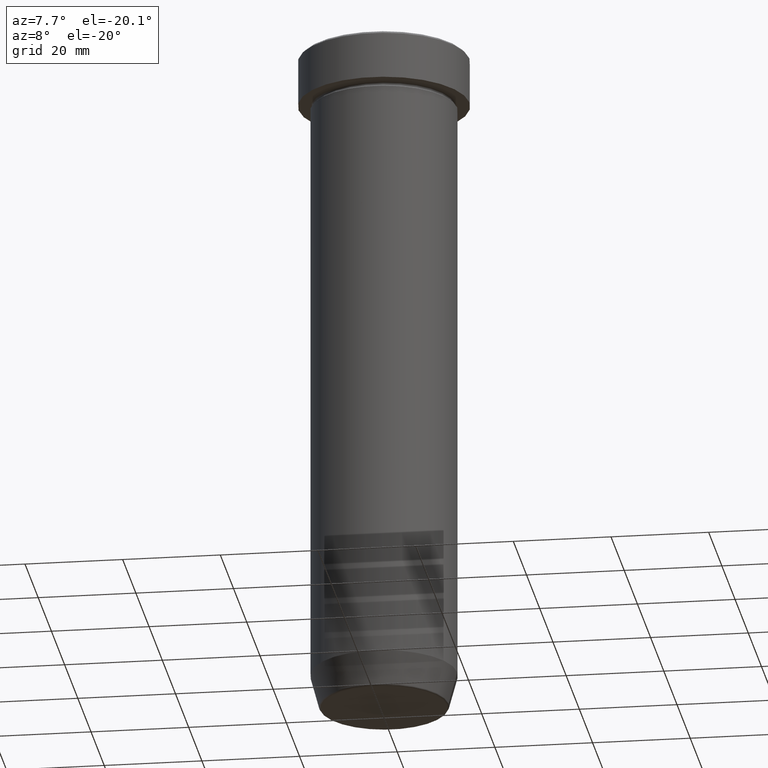
[diagram: clean part render]
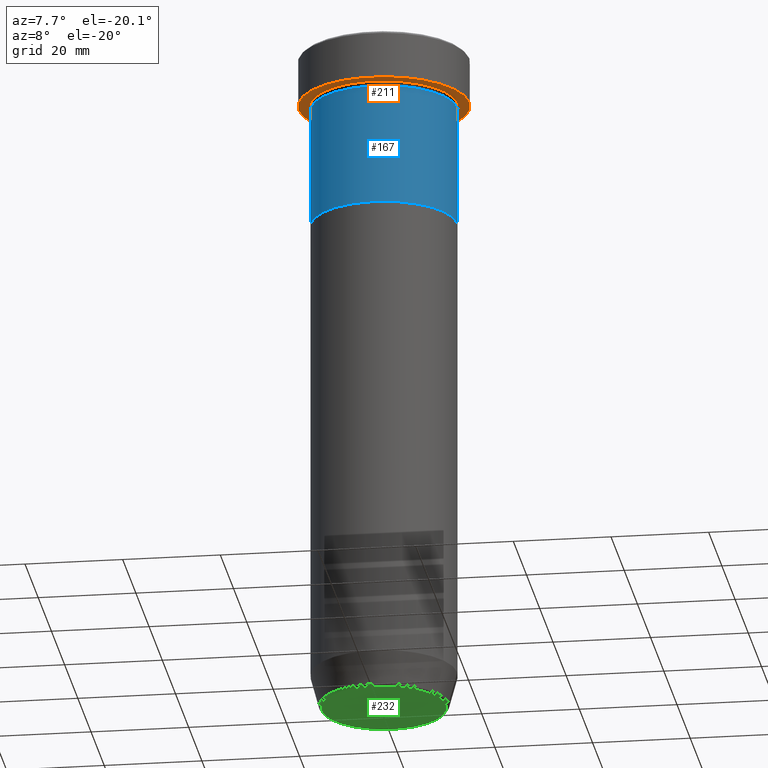
[diagram: same view with three faces highlighted in distinct colors, each labeled with its STEP entity id]
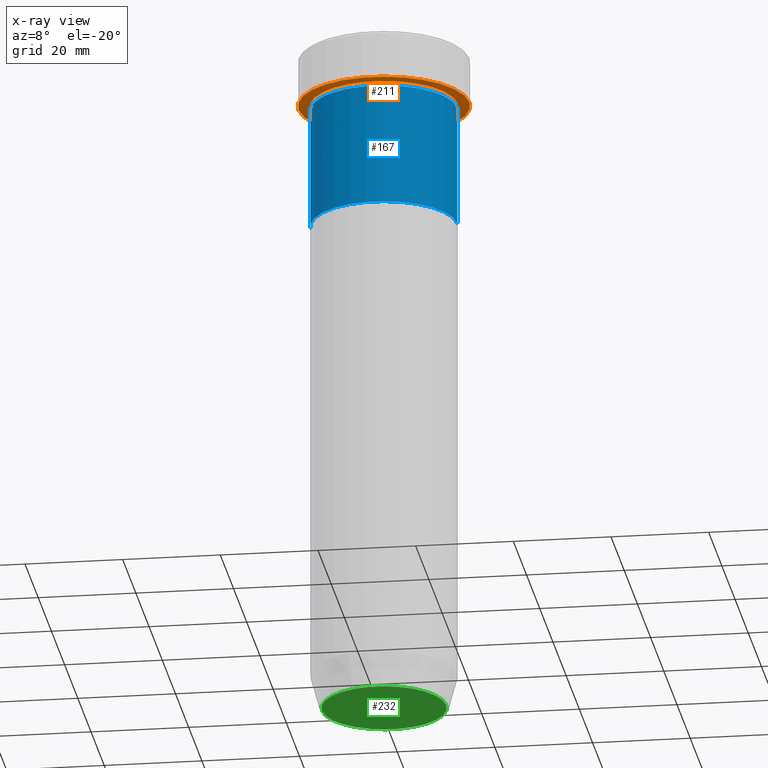
[diagram: x-ray of the same camera — body ghosted, the three highlighted faces saturated]
A machine part, auxiliary view with three faces highlighted in distinct colors.
The next image is the same camera in x-ray (body ghosted, the three faces saturated) — at least one of them is partly hidden behind the body in this view.
Their STEP definitions:

[orange] entity #211 — the highlighted planar face has unit normal (0, 0, -1).
#3 = DIRECTION ( 'NONE',  ( 0.000000000000000000, 0.000000000000000000, -1.000000000000000000 ) ) ;
#36 = EDGE_LOOP ( 'NONE', ( #509, #553 ) ) ;
#49 = VERTEX_POINT ( 'NONE', #540 ) ;
#50 = CIRCLE ( 'NONE', #131, 17.50000000000000000 ) ;
#54 = CARTESIAN_POINT ( 'NONE',  ( 0.000000000000000000, 0.000000000000000000, -9.999999999999998224 ) ) ;
#57 = DIRECTION ( 'NONE',  ( -0.000000000000000000, -0.000000000000000000, 1.000000000000000000 ) ) ;
#76 = CARTESIAN_POINT ( 'NONE',  ( 17.50000000000000000, 0.000000000000000000, -9.999999999999998224 ) ) ;
#81 = CARTESIAN_POINT ( 'NONE',  ( -17.50000000000000000, 2.143131898507868248E-15, -9.999999999999998224 ) ) ;
#106 = CIRCLE ( 'NONE', #568, 15.00000000000000000 ) ;
#109 = CIRCLE ( 'NONE', #298, 17.50000000000000000 ) ;
#110 = CARTESIAN_POINT ( 'NONE',  ( 0.000000000000000000, 0.000000000000000000, -9.999999999999998224 ) ) ;
#120 = DIRECTION ( 'NONE',  ( -0.000000000000000000, -0.000000000000000000, 1.000000000000000000 ) ) ;
#131 = AXIS2_PLACEMENT_3D ( 'NONE', #54, #57, #435 ) ;
#158 = CIRCLE ( 'NONE', #186, 15.00000000000000000 ) ;
#176 = DIRECTION ( 'NONE',  ( -1.000000000000000000, 0.000000000000000000, 0.000000000000000000 ) ) ;
#186 = AXIS2_PLACEMENT_3D ( 'NONE', #452, #558, #503 ) ;
#191 = CARTESIAN_POINT ( 'NONE',  ( -15.00000000000000000, 0.000000000000000000, -9.999999999999998224 ) ) ;
#207 = EDGE_CURVE ( 'NONE', #295, #49, #106, .T. ) ;
#211 = ADVANCED_FACE ( 'NONE', ( #230, #317 ), #458, .T. ) ;
#216 = EDGE_CURVE ( 'NONE', #49, #295, #158, .T. ) ;
#223 = VERTEX_POINT ( 'NONE', #76 ) ;
#228 = DIRECTION ( 'NONE',  ( -1.000000000000000000, 0.000000000000000000, -0.000000000000000000 ) ) ;
#229 = VERTEX_POINT ( 'NONE', #81 ) ;
#230 = FACE_BOUND ( 'NONE', #36, .T. ) ;
#276 = ORIENTED_EDGE ( 'NONE', *, *, #384, .F. ) ;
#283 = ORIENTED_EDGE ( 'NONE', *, *, #453, .F. ) ;
#295 = VERTEX_POINT ( 'NONE', #191 ) ;
#297 = DIRECTION ( 'NONE',  ( -0.000000000000000000, -0.000000000000000000, 1.000000000000000000 ) ) ;
#298 = AXIS2_PLACEMENT_3D ( 'NONE', #110, #297, #299 ) ;
#299 = DIRECTION ( 'NONE',  ( 1.000000000000000000, 0.000000000000000000, 0.000000000000000000 ) ) ;
#313 = AXIS2_PLACEMENT_3D ( 'NONE', #419, #3, #228 ) ;
#317 = FACE_OUTER_BOUND ( 'NONE', #436, .T. ) ;
#368 = CARTESIAN_POINT ( 'NONE',  ( 0.000000000000000000, 0.000000000000000000, -9.999999999999998224 ) ) ;
#384 = EDGE_CURVE ( 'NONE', #229, #223, #109, .T. ) ;
#419 = CARTESIAN_POINT ( 'NONE',  ( 0.000000000000000000, 17.50000000000000000, -9.999999999999998224 ) ) ;
#435 = DIRECTION ( 'NONE',  ( 1.000000000000000000, 0.000000000000000000, 0.000000000000000000 ) ) ;
#436 = EDGE_LOOP ( 'NONE', ( #283, #276 ) ) ;
#452 = CARTESIAN_POINT ( 'NONE',  ( 0.000000000000000000, 0.000000000000000000, -9.999999999999998224 ) ) ;
#453 = EDGE_CURVE ( 'NONE', #223, #229, #50, .T. ) ;
#458 = PLANE ( 'NONE',  #313 ) ;
#503 = DIRECTION ( 'NONE',  ( -1.000000000000000000, 0.000000000000000000, 0.000000000000000000 ) ) ;
#509 = ORIENTED_EDGE ( 'NONE', *, *, #207, .T. ) ;
#540 = CARTESIAN_POINT ( 'NONE',  ( 15.00000000000000000, 1.836970198721029589E-15, -9.999999999999998224 ) ) ;
#553 = ORIENTED_EDGE ( 'NONE', *, *, #216, .T. ) ;
#558 = DIRECTION ( 'NONE',  ( -0.000000000000000000, -0.000000000000000000, 1.000000000000000000 ) ) ;
#568 = AXIS2_PLACEMENT_3D ( 'NONE', #368, #120, #176 ) ;

[blue] entity #167 — the highlighted cylindrical surface (partial cylindrical patch) has radius 15 mm, axis along (-0, -0, 1).
#4 = VERTEX_POINT ( 'NONE', #153 ) ;
#12 = CARTESIAN_POINT ( 'NONE',  ( 0.000000000000000000, 0.000000000000000000, -36.00000000000000000 ) ) ;
#31 = AXIS2_PLACEMENT_3D ( 'NONE', #12, #390, #133 ) ;
#35 = CYLINDRICAL_SURFACE ( 'NONE', #84, 15.00000000000000000 ) ;
#46 = VERTEX_POINT ( 'NONE', #405 ) ;
#70 = CIRCLE ( 'NONE', #31, 15.00000000000000000 ) ;
#82 = VERTEX_POINT ( 'NONE', #165 ) ;
#84 = AXIS2_PLACEMENT_3D ( 'NONE', #85, #514, #461 ) ;
#85 = CARTESIAN_POINT ( 'NONE',  ( 0.000000000000000000, 0.000000000000000000, 0.000000000000000000 ) ) ;
#121 = VECTOR ( 'NONE', #376, 1000.000000000000000 ) ;
#126 = ORIENTED_EDGE ( 'NONE', *, *, #496, .T. ) ;
#129 = FACE_OUTER_BOUND ( 'NONE', #533, .T. ) ;
#133 = DIRECTION ( 'NONE',  ( 1.000000000000000000, 0.000000000000000000, 0.000000000000000000 ) ) ;
#143 = EDGE_CURVE ( 'NONE', #4, #82, #592, .T. ) ;
#153 = CARTESIAN_POINT ( 'NONE',  ( 15.00000000000000000, 0.000000000000000000, -36.00000000000000000 ) ) ;
#165 = CARTESIAN_POINT ( 'NONE',  ( 15.00000000000000000, 0.000000000000000000, -11.00000000000000000 ) ) ;
#167 = ADVANCED_FACE ( 'NONE', ( #129 ), #35, .T. ) ;
#174 = ORIENTED_EDGE ( 'NONE', *, *, #197, .F. ) ;
#197 = EDGE_CURVE ( 'NONE', #242, #82, #237, .T. ) ;
#224 = DIRECTION ( 'NONE',  ( 1.000000000000000000, 0.000000000000000000, 0.000000000000000000 ) ) ;
#235 = ORIENTED_EDGE ( 'NONE', *, *, #467, .F. ) ;
#237 = CIRCLE ( 'NONE', #494, 15.00000000000000000 ) ;
#242 = VERTEX_POINT ( 'NONE', #464 ) ;
#243 = CARTESIAN_POINT ( 'NONE',  ( -15.00000000000000000, 1.836970198721029589E-15, 0.000000000000000000 ) ) ;
#268 = CARTESIAN_POINT ( 'NONE',  ( 15.00000000000000000, 0.000000000000000000, 0.000000000000000000 ) ) ;
#365 = CARTESIAN_POINT ( 'NONE',  ( 0.000000000000000000, 0.000000000000000000, -11.00000000000000000 ) ) ;
#376 = DIRECTION ( 'NONE',  ( -0.000000000000000000, -0.000000000000000000, 1.000000000000000000 ) ) ;
#390 = DIRECTION ( 'NONE',  ( -0.000000000000000000, -0.000000000000000000, 1.000000000000000000 ) ) ;
#405 = CARTESIAN_POINT ( 'NONE',  ( -15.00000000000000000, 1.836970198721029589E-15, -36.00000000000000000 ) ) ;
#423 = LINE ( 'NONE', #243, #121 ) ;
#456 = ORIENTED_EDGE ( 'NONE', *, *, #143, .T. ) ;
#461 = DIRECTION ( 'NONE',  ( 1.000000000000000000, 0.000000000000000000, 0.000000000000000000 ) ) ;
#464 = CARTESIAN_POINT ( 'NONE',  ( -15.00000000000000000, 1.836970198721029589E-15, -11.00000000000000000 ) ) ;
#467 = EDGE_CURVE ( 'NONE', #46, #242, #423, .T. ) ;
#494 = AXIS2_PLACEMENT_3D ( 'NONE', #365, #594, #224 ) ;
#496 = EDGE_CURVE ( 'NONE', #46, #4, #70, .T. ) ;
#511 = DIRECTION ( 'NONE',  ( -0.000000000000000000, -0.000000000000000000, 1.000000000000000000 ) ) ;
#514 = DIRECTION ( 'NONE',  ( -0.000000000000000000, -0.000000000000000000, 1.000000000000000000 ) ) ;
#533 = EDGE_LOOP ( 'NONE', ( #235, #126, #456, #174 ) ) ;
#592 = LINE ( 'NONE', #268, #597 ) ;
#594 = DIRECTION ( 'NONE',  ( -0.000000000000000000, -0.000000000000000000, 1.000000000000000000 ) ) ;
#597 = VECTOR ( 'NONE', #511, 1000.000000000000000 ) ;

[green] entity #232 — the highlighted planar face has unit normal (0, -0, 1).
#25 = DIRECTION ( 'NONE',  ( 1.000000000000000000, 0.000000000000000000, 0.000000000000000000 ) ) ;
#83 = AXIS2_PLACEMENT_3D ( 'NONE', #564, #139, #338 ) ;
#114 = CIRCLE ( 'NONE', #83, 12.74069215899265117 ) ;
#119 = AXIS2_PLACEMENT_3D ( 'NONE', #215, #485, #25 ) ;
#139 = DIRECTION ( 'NONE',  ( 0.000000000000000000, 0.000000000000000000, -1.000000000000000000 ) ) ;
#172 = FACE_OUTER_BOUND ( 'NONE', #196, .T. ) ;
#196 = EDGE_LOOP ( 'NONE', ( #344, #240 ) ) ;
#215 = CARTESIAN_POINT ( 'NONE',  ( 0.000000000000000000, 0.000000000000000000, -139.9999999999999716 ) ) ;
#232 = ADVANCED_FACE ( 'NONE', ( #172 ), #371, .F. ) ;
#240 = ORIENTED_EDGE ( 'NONE', *, *, #572, .T. ) ;
#282 = DIRECTION ( 'NONE',  ( 0.000000000000000000, -0.000000000000000000, 1.000000000000000000 ) ) ;
#302 = AXIS2_PLACEMENT_3D ( 'NONE', #415, #282, #474 ) ;
#338 = DIRECTION ( 'NONE',  ( 1.000000000000000000, 0.000000000000000000, 0.000000000000000000 ) ) ;
#344 = ORIENTED_EDGE ( 'NONE', *, *, #346, .T. ) ;
#346 = EDGE_CURVE ( 'NONE', #418, #389, #396, .T. ) ;
#371 = PLANE ( 'NONE',  #302 ) ;
#389 = VERTEX_POINT ( 'NONE', #584 ) ;
#396 = CIRCLE ( 'NONE', #119, 12.74069215899265117 ) ;
#415 = CARTESIAN_POINT ( 'NONE',  ( 0.000000000000000000, 1.102182119232617911E-14, -139.9999999999999716 ) ) ;
#418 = VERTEX_POINT ( 'NONE', #582 ) ;
#474 = DIRECTION ( 'NONE',  ( 1.000000000000000000, 0.000000000000000000, 0.000000000000000000 ) ) ;
#485 = DIRECTION ( 'NONE',  ( 0.000000000000000000, 0.000000000000000000, -1.000000000000000000 ) ) ;
#564 = CARTESIAN_POINT ( 'NONE',  ( 0.000000000000000000, 0.000000000000000000, -139.9999999999999716 ) ) ;
#572 = EDGE_CURVE ( 'NONE', #389, #418, #114, .T. ) ;
#582 = CARTESIAN_POINT ( 'NONE',  ( 12.74069215899265117, 0.000000000000000000, -139.9999999999999716 ) ) ;
#584 = CARTESIAN_POINT ( 'NONE',  ( -12.74069215899265117, 1.589857736427680246E-15, -139.9999999999999716 ) ) ;